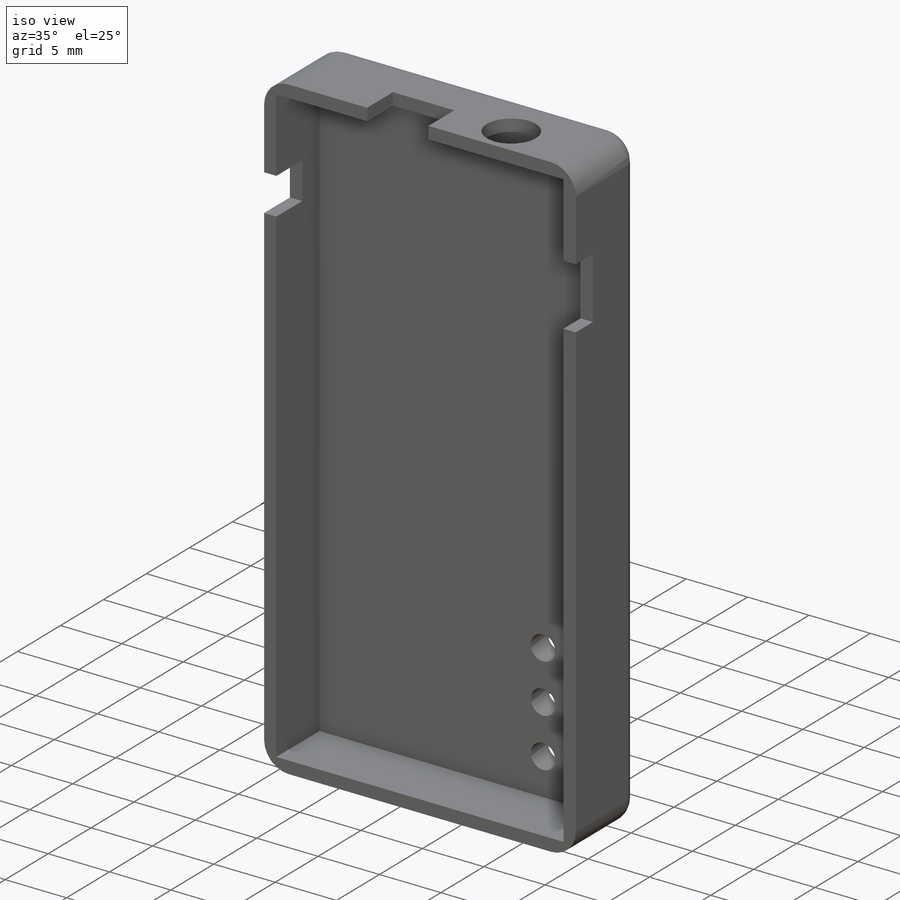
[diagram: iso view]
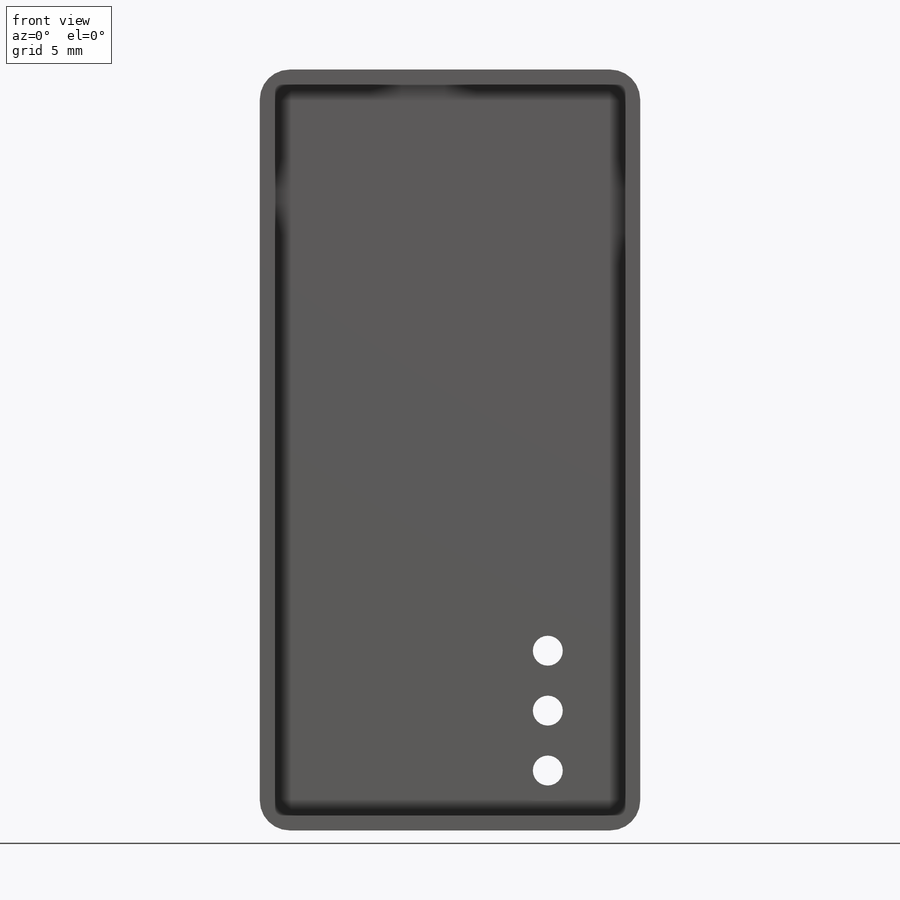
[diagram: front view]
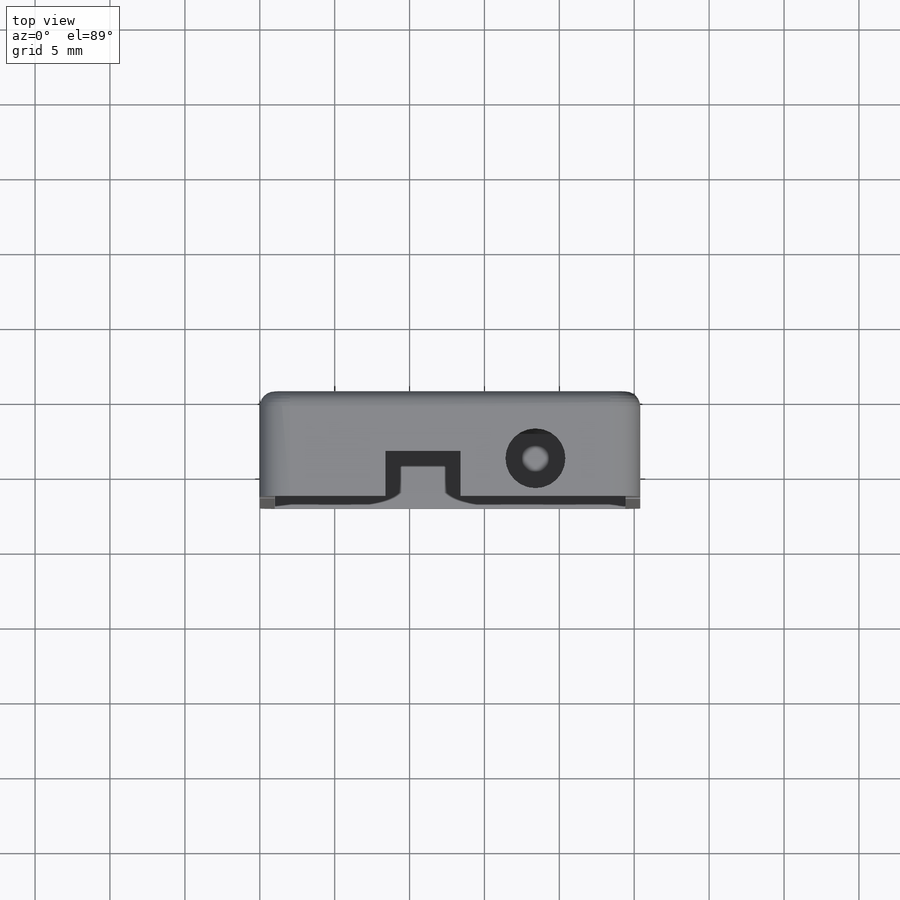
[diagram: top view]
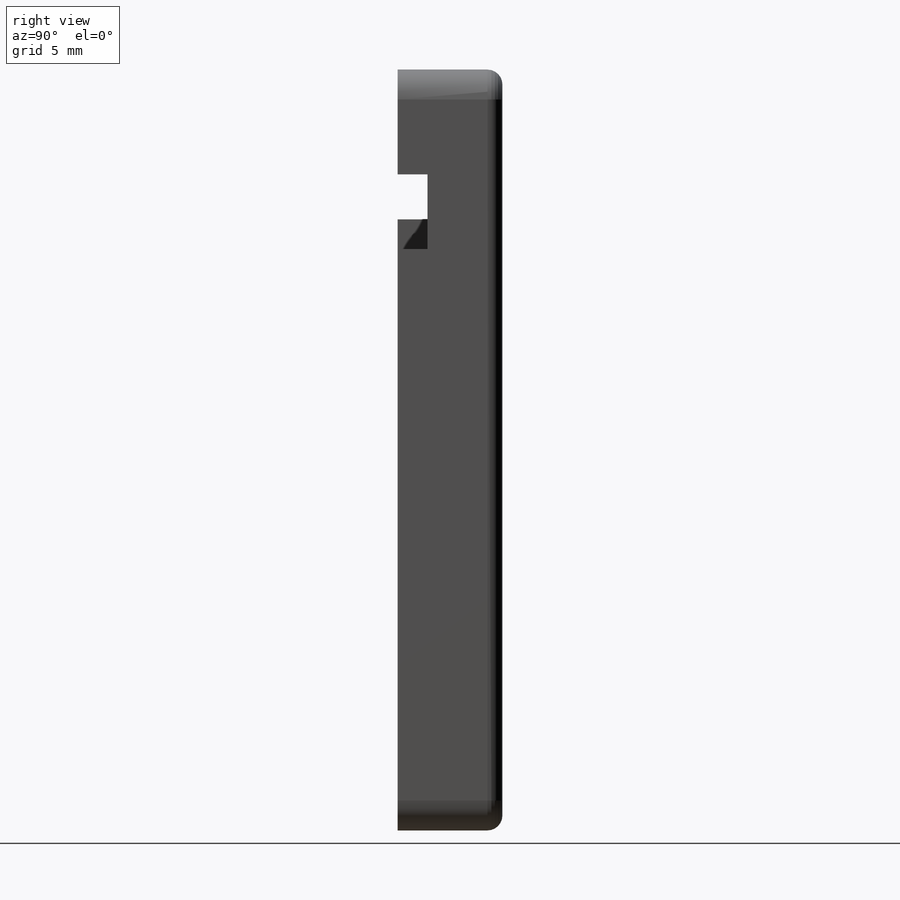
[diagram: right view]
SOLIDWORKS PART (.sldprt)
format: sldprt  version: not decoded by parser v0  size: 294,400 bytes
history: native  units: mm
features: sketch x6, cut_extrude x4, extrude x2, fillet x2, material x1 (+12 scaffold rows collapsed)
feature tree (27):
  scaffold x12  (default folders/planes/origin — collapsed)
  material  "Material <not specified>"
  sketch  "Sketch1"  dims[D1=25.4mm D2=50.8mm]
  extrude  "Boss-Extrude1"  Depth=2.000001mm
  sketch  "Sketch2"  dims[D1=~1.000001mm D2=~1.000001mm D3=~1.000001mm D4=~1.000001mm]
  extrude  "Boss-Extrude2"  Depth=5mm
  fillet  "Fillet1"  Radius=2mm
  fillet  "Fillet2"  Radius=1mm
  sketch  "Sketch6"  dims[D2=4.445mm D1=5.08mm D3=2.54mm]
  cut_extrude  "Cut-Extrude3"  [1 undecoded]
  sketch  "Sketch7"  dims[D1=8.89mm D2=7.62mm D3=3.81mm]
  cut_extrude  "Cut-Extrude4"  [1 undecoded]
  sketch  "Sketch8"  dims[D1=7.62mm D2=2.54mm D3=2.54mm D4=17.78mm D5=2.54mm D6=2.54mm]
  cut_extrude  "Cut-Extrude5"  [1 undecoded]
  sketch  "Sketch9"  dims[D2=2.54mm D5=2.54mm D6=2.54mm D1=8.89mm D3=3.81mm D4=3.81mm D7=2.54mm]
  cut_extrude  "Cut-Extrude6"  [1 undecoded]
decode coverage: 10 of 14 modeling features carry decoded parameters
note: ~ marks probable driven/reference dimensions
note: 4 parameter values undecoded
summary: no parameter record found for 4 features
note: suppression state not decoded; provenance and decode notes live in map.json
